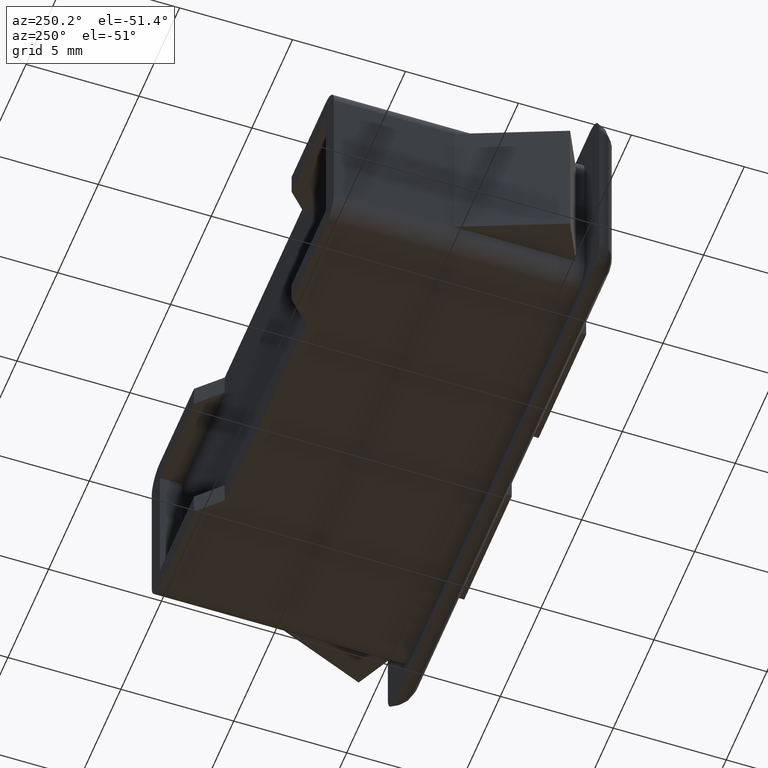
[diagram: clean part render]
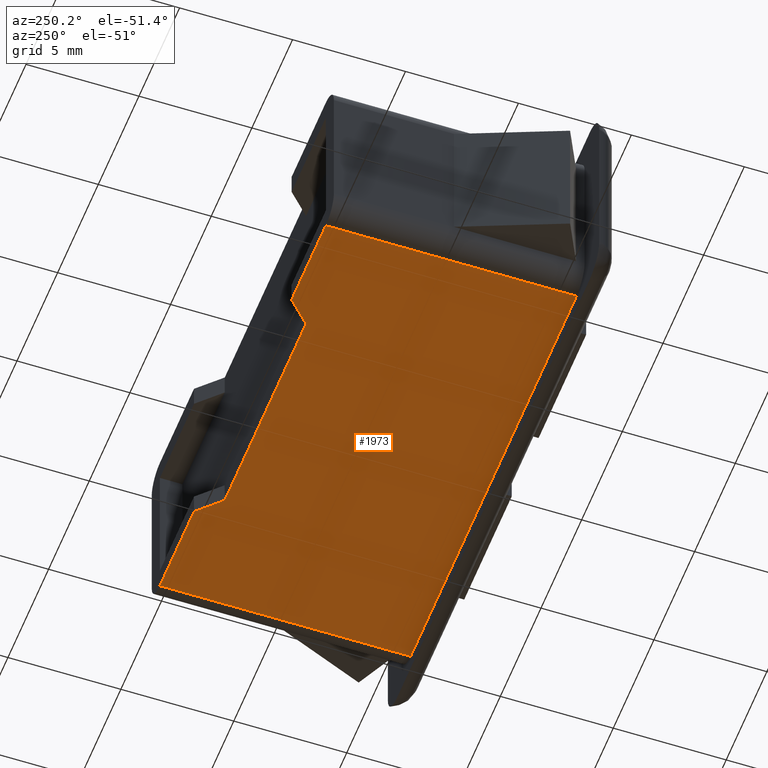
[diagram: same view with one face highlighted and labeled with its STEP entity id]
A machine part, auxiliary view. The second image highlights one B-rep face of the part: STEP entity #1973.
In plain terms, the highlighted face is a freeform B-spline surface patch.
Its self-contained STEP definition (entity closure, byte-faithful):
#1358=CARTESIAN_POINT('',(-10.200001000000000,-11.099990999999999,-4.099999000000000));
#1359=VERTEX_POINT('',#1358);
#1380=CARTESIAN_POINT('',(-10.200001000000000,0.0,-4.099999000000000));
#1381=VERTEX_POINT('',#1380);
#1395=CARTESIAN_POINT('',(-10.200001000000000,-11.099990999999999,-4.099999000000000));
#1396=CARTESIAN_POINT('',(-10.200001000000000,0.0,-4.099999000000000));
#1397=QUASI_UNIFORM_CURVE('',1,(#1395,#1396),.UNSPECIFIED.,.F.,.U.);
#1398=EDGE_CURVE('',#1359,#1381,#1397,.T.);
#1541=CARTESIAN_POINT('',(10.199997000000000,0.0,-4.099999000000000));
#1542=VERTEX_POINT('',#1541);
#1563=CARTESIAN_POINT('',(10.199997000000000,-11.099990999999999,-4.099999000000000));
#1564=VERTEX_POINT('',#1563);
#1578=CARTESIAN_POINT('',(10.199997000000000,0.0,-4.099999000000000));
#1579=CARTESIAN_POINT('',(10.199997000000000,-11.099990999999999,-4.099999000000000));
#1580=QUASI_UNIFORM_CURVE('',1,(#1578,#1579),.UNSPECIFIED.,.F.,.U.);
#1581=EDGE_CURVE('',#1542,#1564,#1580,.T.);
#1926=CARTESIAN_POINT('',(-11.218980669060260,-11.654435424737290,-4.099999000000000));
#1927=CARTESIAN_POINT('',(11.218977398621041,-11.654435424737290,-4.099999000000000));
#1928=CARTESIAN_POINT('',(-11.218980669060260,0.554444821703902,-4.099999000000000));
#1929=CARTESIAN_POINT('',(11.218977398621041,0.554444821703902,-4.099999000000000));
#1930=B_SPLINE_SURFACE_WITH_KNOTS('',1,1,((#1926,#1928),(#1927,#1929)),.UNSPECIFIED.,.F.,.F.,.U.,(2,2),(2,2),(0.0,22.437958067681301),(0.0,12.208880246441190),.UNSPECIFIED.);
#1931=CARTESIAN_POINT('',(6.0,0.0,-4.099999000000000));
#1932=VERTEX_POINT('',#1931);
#1933=CARTESIAN_POINT('',(6.0,0.0,-4.099999000000000));
#1934=CARTESIAN_POINT('',(10.199997000000000,0.0,-4.099999000000000));
#1935=QUASI_UNIFORM_CURVE('',1,(#1933,#1934),.UNSPECIFIED.,.F.,.U.);
#1936=EDGE_CURVE('',#1932,#1542,#1935,.T.);
#1937=ORIENTED_EDGE('',*,*,#1936,.T.);
#1938=ORIENTED_EDGE('',*,*,#1581,.T.);
#1939=CARTESIAN_POINT('',(10.199997000000000,-11.099990999999999,-4.099999000000000));
#1940=CARTESIAN_POINT('',(-10.200001000000000,-11.099990999999999,-4.099999000000000));
#1941=QUASI_UNIFORM_CURVE('',1,(#1939,#1940),.UNSPECIFIED.,.F.,.U.);
#1942=EDGE_CURVE('',#1564,#1359,#1941,.T.);
#1943=ORIENTED_EDGE('',*,*,#1942,.T.);
#1944=ORIENTED_EDGE('',*,*,#1398,.T.);
#1945=CARTESIAN_POINT('',(-6.000004000000000,0.0,-4.099999000000000));
#1946=VERTEX_POINT('',#1945);
#1947=CARTESIAN_POINT('',(-10.200001000000000,0.0,-4.099999000000000));
#1948=CARTESIAN_POINT('',(-6.000004000000000,0.0,-4.099999000000000));
#1949=QUASI_UNIFORM_CURVE('',1,(#1947,#1948),.UNSPECIFIED.,.F.,.U.);
#1950=EDGE_CURVE('',#1381,#1946,#1949,.T.);
#1951=ORIENTED_EDGE('',*,*,#1950,.T.);
#1952=CARTESIAN_POINT('',(-5.000004000000000,-1.0,-4.099999000000000));
#1953=VERTEX_POINT('',#1952);
#1954=CARTESIAN_POINT('',(-6.000004000000000,0.0,-4.099999000000000));
#1955=CARTESIAN_POINT('',(-5.000004000000000,-1.0,-4.099999000000000));
#1956=QUASI_UNIFORM_CURVE('',1,(#1954,#1955),.UNSPECIFIED.,.F.,.U.);
#1957=EDGE_CURVE('',#1946,#1953,#1956,.T.);
#1958=ORIENTED_EDGE('',*,*,#1957,.T.);
#1959=CARTESIAN_POINT('',(5.0,-1.0,-4.099999000000000));
#1960=VERTEX_POINT('',#1959);
#1961=CARTESIAN_POINT('',(-5.000004000000000,-1.0,-4.099999000000000));
#1962=CARTESIAN_POINT('',(5.0,-1.0,-4.099999000000000));
#1963=QUASI_UNIFORM_CURVE('',1,(#1961,#1962),.UNSPECIFIED.,.F.,.U.);
#1964=EDGE_CURVE('',#1953,#1960,#1963,.T.);
#1965=ORIENTED_EDGE('',*,*,#1964,.T.);
#1966=CARTESIAN_POINT('',(5.0,-1.0,-4.099999000000000));
#1967=CARTESIAN_POINT('',(6.0,0.0,-4.099999000000000));
#1968=QUASI_UNIFORM_CURVE('',1,(#1966,#1967),.UNSPECIFIED.,.F.,.U.);
#1969=EDGE_CURVE('',#1960,#1932,#1968,.T.);
#1970=ORIENTED_EDGE('',*,*,#1969,.T.);
#1971=EDGE_LOOP('',(#1937,#1938,#1943,#1944,#1951,#1958,#1965,#1970));
#1972=FACE_OUTER_BOUND('',#1971,.T.);
#1973=ADVANCED_FACE('',(#1972),#1930,.F.);